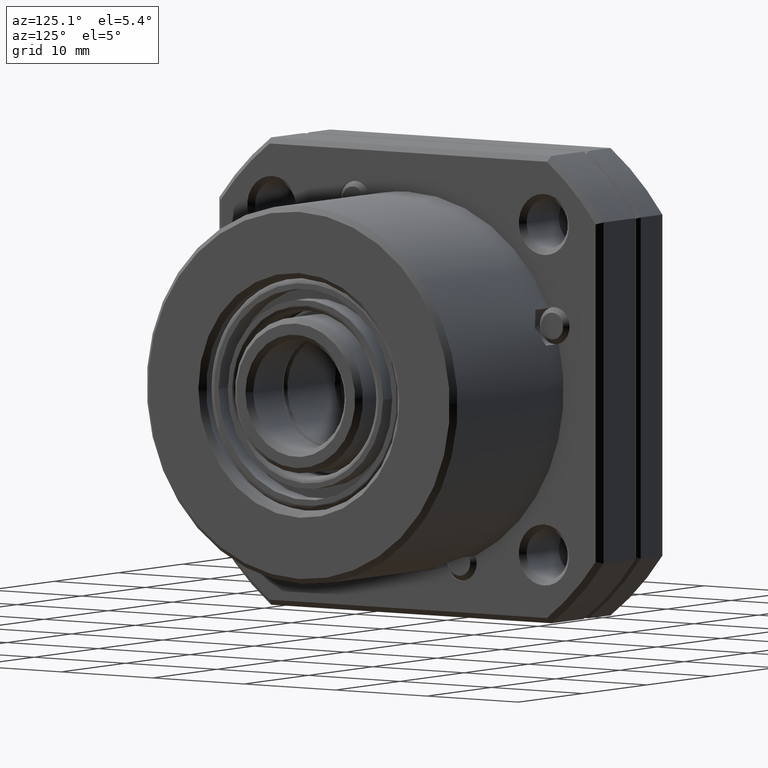
[diagram: clean part render]
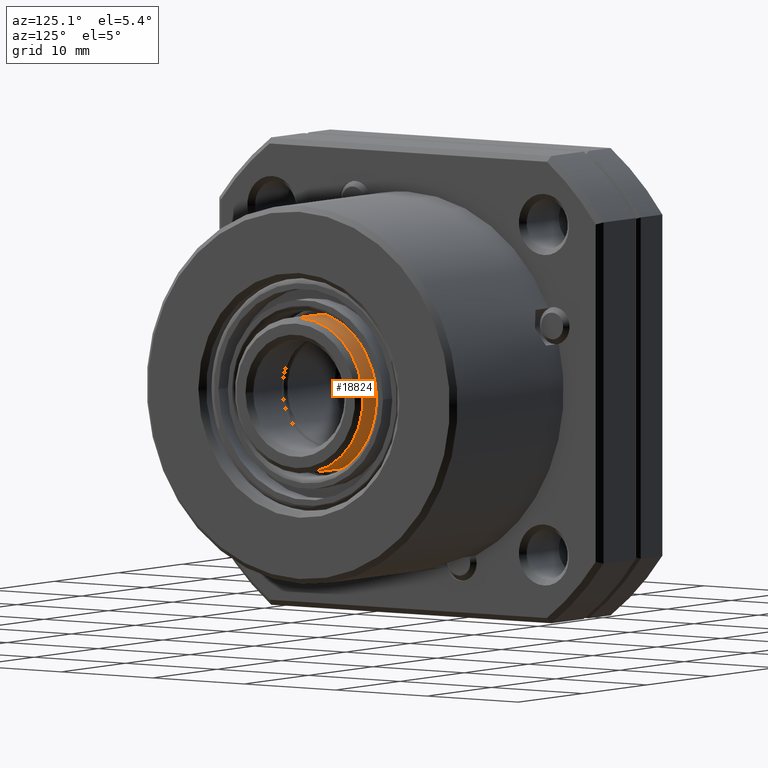
[diagram: same view with one face highlighted and labeled with its STEP entity id]
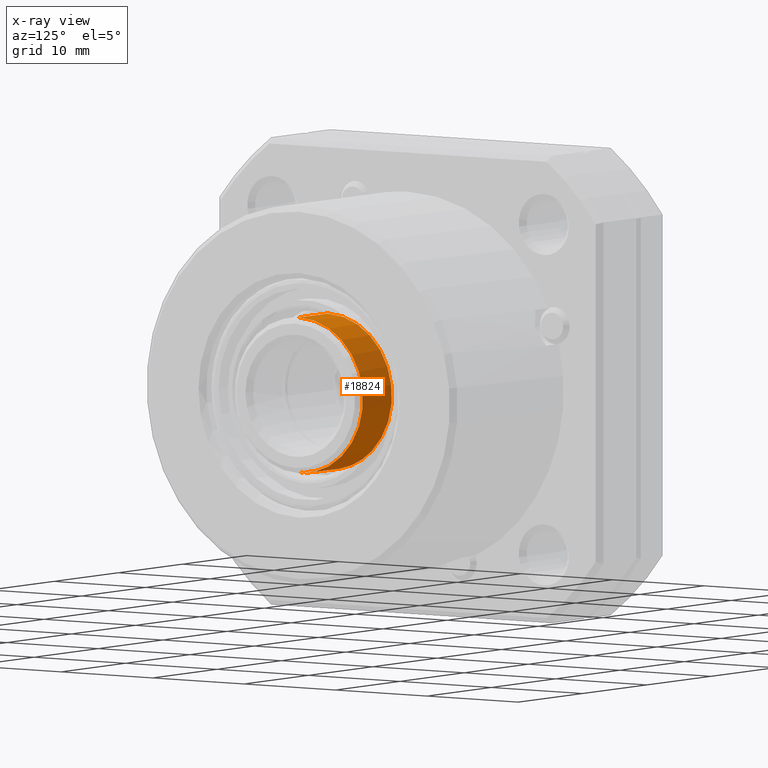
[diagram: x-ray of the same camera — body ghosted, the highlighted face saturated]
A machine part, auxiliary view. The second image highlights one B-rep face of the part: STEP entity #18824.
The next image is the same camera in x-ray: the body ghosted, the highlighted face saturated — about 0% of this face is hidden behind the body in this view.
In plain terms, the highlighted cylindrical surface (partial cylindrical patch) has radius 7 mm, axis along (-1, 0, 0).
Its self-contained STEP definition (entity closure, byte-faithful):
#185 = ORIENTED_EDGE ( 'NONE', *, *, #14032, .T. ) ;
#823 = VERTEX_POINT ( 'NONE', #19017 ) ;
#1136 = CARTESIAN_POINT ( 'NONE',  ( 18.49999999999999600, 1.531176570128815500E-015, 6.999999999999997300 ) ) ;
#1158 = LINE ( 'NONE', #1644, #8628 ) ;
#1316 = AXIS2_PLACEMENT_3D ( 'NONE', #17393, #2686, #7143 ) ;
#1644 = CARTESIAN_POINT ( 'NONE',  ( 2.938478467263673500, 2.388429329531963100E-015, -7.000000000000002700 ) ) ;
#2135 = AXIS2_PLACEMENT_3D ( 'NONE', #14304, #5566, #15790 ) ;
#2479 = LINE ( 'NONE', #3575, #10382 ) ;
#2686 = DIRECTION ( 'NONE',  ( -1.000000000000000000, 0.0000000000000000000, 0.0000000000000000000 ) ) ;
#3151 = DIRECTION ( 'NONE',  ( -1.000000000000000000, 0.0000000000000000000, 0.0000000000000000000 ) ) ;
#3248 = CIRCLE ( 'NONE', #15566, 7.000000000000000000 ) ;
#3575 = CARTESIAN_POINT ( 'NONE',  ( 2.938478467263673500, 1.531176570128815500E-015, 6.999999999999997300 ) ) ;
#4154 = ORIENTED_EDGE ( 'NONE', *, *, #15414, .T. ) ;
#4276 = CARTESIAN_POINT ( 'NONE',  ( 22.99999999999999300, 1.531176570128815500E-015, -2.666257297030887800E-015 ) ) ;
#5566 = DIRECTION ( 'NONE',  ( 1.000000000000000000, -0.0000000000000000000, -0.0000000000000000000 ) ) ;
#5731 = CARTESIAN_POINT ( 'NONE',  ( 18.49999999999999600, 1.531176570128815500E-015, -2.666257297030887800E-015 ) ) ;
#5818 = DIRECTION ( 'NONE',  ( 0.0000000000000000000, 0.0000000000000000000, 1.000000000000000000 ) ) ;
#7143 = DIRECTION ( 'NONE',  ( 0.0000000000000000000, 0.0000000000000000000, 1.000000000000000000 ) ) ;
#7169 = DIRECTION ( 'NONE',  ( 0.0000000000000000000, 0.0000000000000000000, 1.000000000000000000 ) ) ;
#7524 = VERTEX_POINT ( 'NONE', #14215 ) ;
#8628 = VECTOR ( 'NONE', #3151, 1000.000000000000000 ) ;
#8857 = ORIENTED_EDGE ( 'NONE', *, *, #18864, .T. ) ;
#10222 = CYLINDRICAL_SURFACE ( 'NONE', #1316, 7.000000000000000000 ) ;
#10242 = VERTEX_POINT ( 'NONE', #1136 ) ;
#10258 = AXIS2_PLACEMENT_3D ( 'NONE', #5731, #15952, #7169 ) ;
#10382 = VECTOR ( 'NONE', #12441, 1000.000000000000000 ) ;
#10698 = VERTEX_POINT ( 'NONE', #17101 ) ;
#12212 = CIRCLE ( 'NONE', #2135, 7.000000000000000000 ) ;
#12441 = DIRECTION ( 'NONE',  ( -1.000000000000000000, 0.0000000000000000000, 0.0000000000000000000 ) ) ;
#13522 = EDGE_CURVE ( 'NONE', #823, #10242, #2479, .T. ) ;
#14032 = EDGE_CURVE ( 'NONE', #7524, #10698, #12212, .T. ) ;
#14142 = ORIENTED_EDGE ( 'NONE', *, *, #17365, .T. ) ;
#14215 = CARTESIAN_POINT ( 'NONE',  ( 18.49999999999999600, 2.388429329531963100E-015, -7.000000000000002700 ) ) ;
#14304 = CARTESIAN_POINT ( 'NONE',  ( 18.49999999999999600, 1.531176570128815500E-015, -2.666257297030887800E-015 ) ) ;
#14557 = DIRECTION ( 'NONE',  ( -1.000000000000000000, 0.0000000000000000000, 0.0000000000000000000 ) ) ;
#15199 = VERTEX_POINT ( 'NONE', #16198 ) ;
#15300 = CIRCLE ( 'NONE', #10258, 7.000000000000000000 ) ;
#15414 = EDGE_CURVE ( 'NONE', #10698, #10242, #15300, .T. ) ;
#15566 = AXIS2_PLACEMENT_3D ( 'NONE', #4276, #14557, #5818 ) ;
#15790 = DIRECTION ( 'NONE',  ( 0.0000000000000000000, 0.0000000000000000000, 1.000000000000000000 ) ) ;
#15952 = DIRECTION ( 'NONE',  ( 1.000000000000000000, -0.0000000000000000000, -0.0000000000000000000 ) ) ;
#16198 = CARTESIAN_POINT ( 'NONE',  ( 22.99999999999999300, 2.591976235379954300E-015, -7.000000000000002700 ) ) ;
#16305 = ORIENTED_EDGE ( 'NONE', *, *, #13522, .F. ) ;
#17101 = CARTESIAN_POINT ( 'NONE',  ( 18.49999999999999600, 4.781700807744734900, -5.112273211127650500 ) ) ;
#17135 = EDGE_LOOP ( 'NONE', ( #8857, #14142, #185, #4154, #16305 ) ) ;
#17365 = EDGE_CURVE ( 'NONE', #15199, #7524, #1158, .T. ) ;
#17393 = CARTESIAN_POINT ( 'NONE',  ( 2.938478467263673500, 1.531176570128815500E-015, -2.666257297030887800E-015 ) ) ;
#17987 = FACE_OUTER_BOUND ( 'NONE', #17135, .T. ) ;
#18824 = ADVANCED_FACE ( 'NONE', ( #17987 ), #10222, .T. ) ;
#18864 = EDGE_CURVE ( 'NONE', #823, #15199, #3248, .T. ) ;
#19017 = CARTESIAN_POINT ( 'NONE',  ( 22.99999999999999300, 1.734723475976807100E-015, 6.999999999999997300 ) ) ;